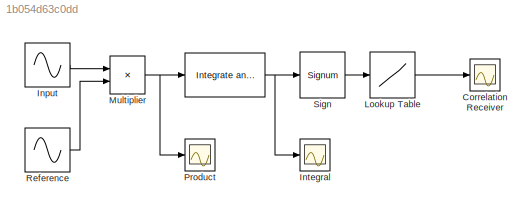
MODEL slx_1b054d63c0dd
KIND model
BLOCK [Reference]    REF=commfilt2/Integrate
and Dump
  LockScale = off
  Ports = [1, 1]
  SourceBlock = commfilt2/Integrate\nand Dump
  SourceType = Integrate and Dump
  accumFracLength = 30
  accumMode = Inherit via internal rule
  accumWordLength = 32
  nodump = off
  obssamples = 50
  offsetsamples = 0
  outputFracLength = 30
  outputMode = Same as accumulator
  outputWordLength = 32
  overflowMode = off
  roundingMode = Floor
BLOCK [Scope] Correlation Receiver
  DataFormat = StructureWithTime
  Floating = off
  NumInputPorts = 1
  Ports = [1]
  SampleTime = 0
  ShowLegends = off
  YMax = 30
  YMin = 0
BLOCK [Sin] Input
  Frequency = 3141.59
  Ports = [0, 1]
  SampleTime = 20e-6
  VectorParams1D = off
BLOCK [Scope] Integral
  DataFormat = StructureWithTime
  Floating = off
  NumInputPorts = 1
  Ports = [1]
  SampleTime = 0
  SaveName = ScopeData2
  ShowLegends = off
  YMax = 1.5
  YMin = 0
BLOCK [Lookup] Lookup Table
  InputValues = [-1,0,1]
  SaturateOnIntegerOverflow = off
  Table = [-1,-1,1]
BLOCK [Product] Multiplier
  InputSameDT = off
  OutDataTypeStr = Inherit: Inherit via internal rule
  Ports = [2, 1]
  SaturateOnIntegerOverflow = off
BLOCK [Scope] Product
  DataFormat = StructureWithTime
  Floating = off
  NumInputPorts = 1
  Ports = [1]
  SampleTime = 0
  SaveName = ScopeData1
  ShowLegends = off
  YMax = 1.5
  YMin = 0
BLOCK [Sin] Reference
  Frequency = 3141.5926
  Ports = [0, 1]
  SampleTime = 20e-6
BLOCK [Signum] Sign
NET  :1 -> Integral:1, Sign:1
LINE Input:1 -> Multiplier:1
LINE Lookup Table:1 -> Correlation Receiver:1
NET Multiplier:1 ->  :1, Product:1
LINE Reference:1 -> Multiplier:2
LINE Sign:1 -> Lookup Table:1
note: NET lines group one-source signal fan-out (src -> all destinations, sorted); 1:1 wires keep LINE
